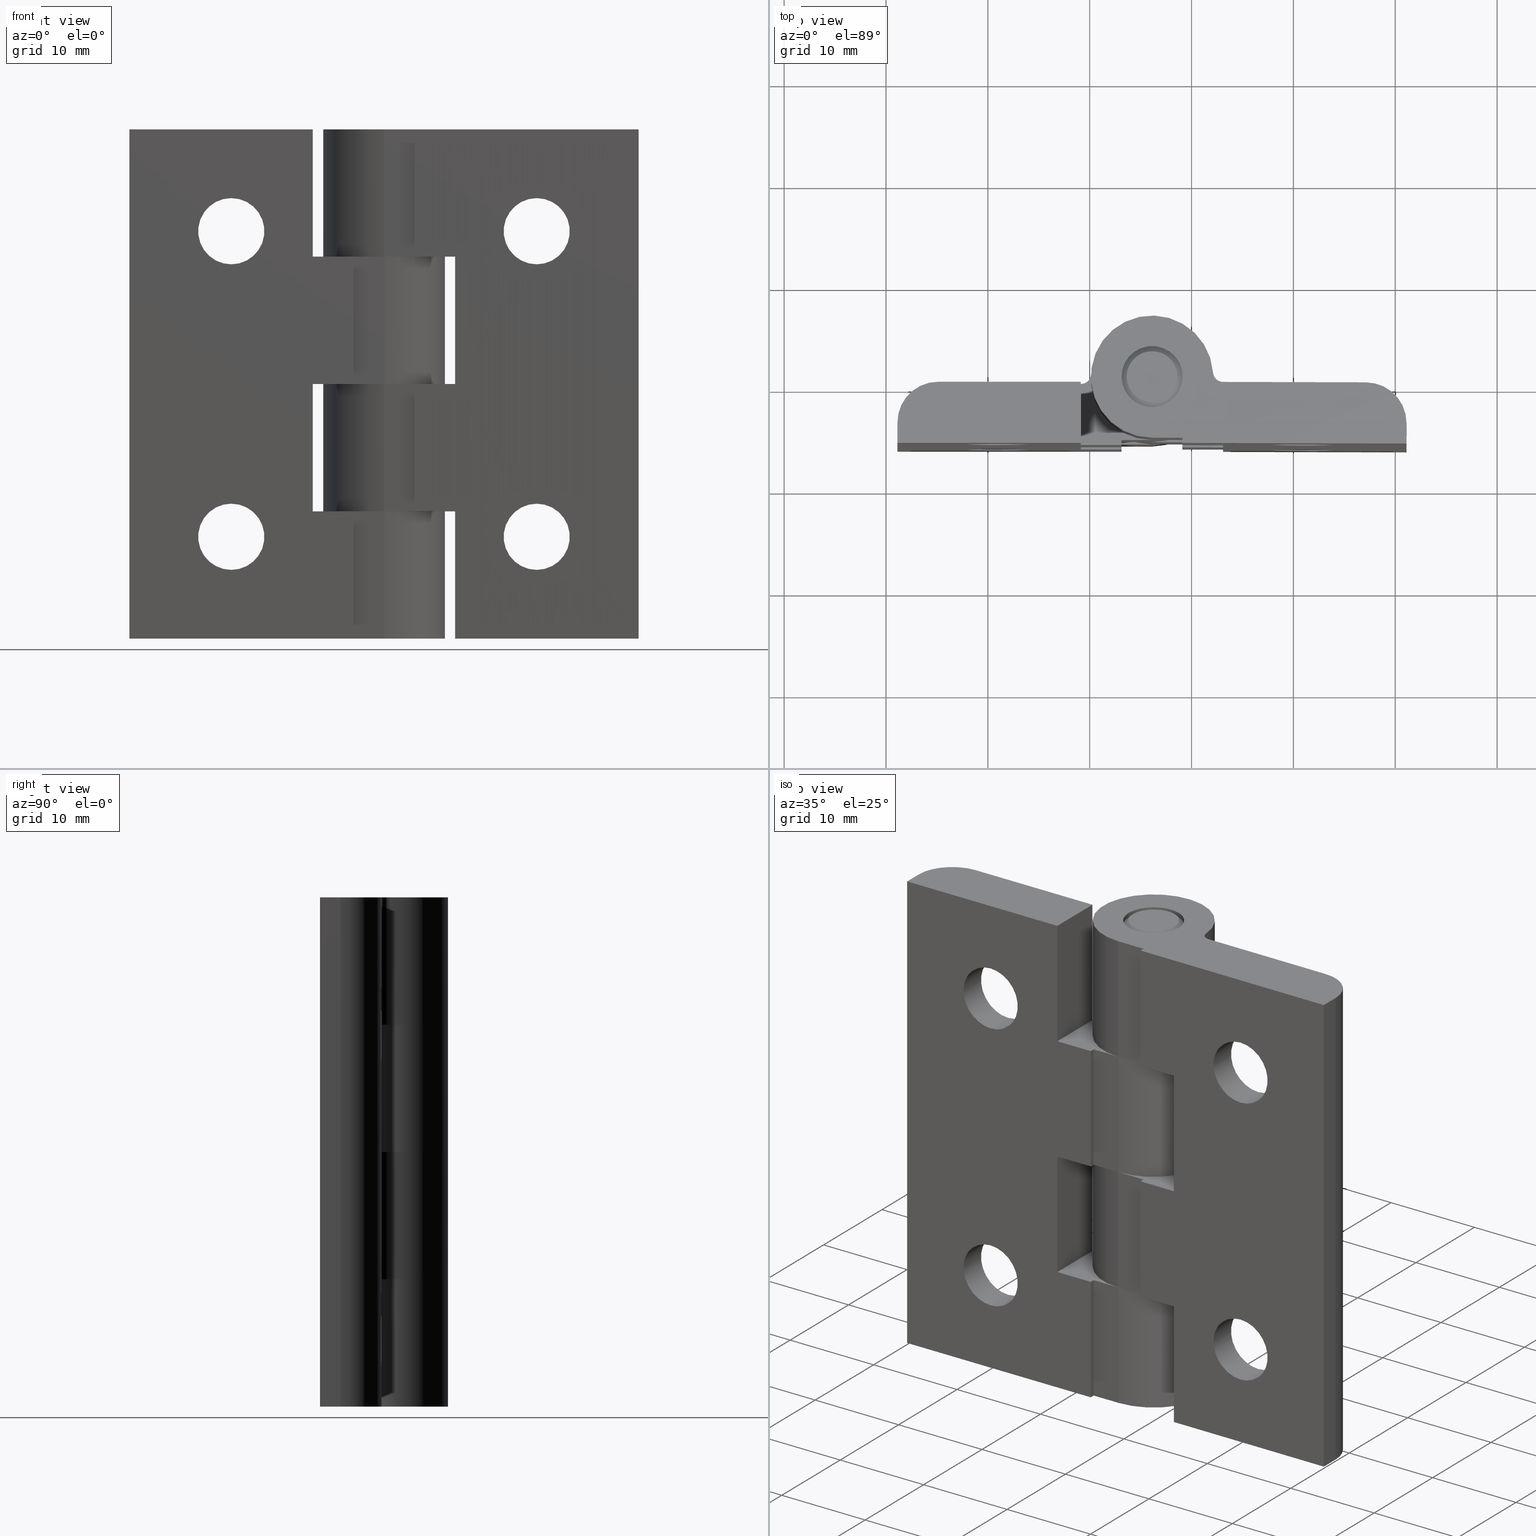
[diagram: canonical four-view strip — front | top / right | iso, engineering-drawing reading convention]
A machine part, canonical four-view strip (front | top / right | iso — engineering-drawing reading convention). The complete STEP part file that produces these views, byte-faithful:
ISO-10303-21;
HEADER;
/* Generated by software containing ST-Developer
 * from STEP Tools, Inc. (www.steptools.com) 
 */

FILE_DESCRIPTION(
/* description */ (''),
/* implementation_level */ '2;1');

FILE_NAME(
/* name */ 
'Q:\\Catalogo\\2_Accessori Dierre\\Per Download Web e catalogo cartace
o\\CATALOGO ACCESSORI PER RIPARI\\PAGINA 59\\CCRYY0000063.stp',
/* time_stamp */ '2018-07-30T11:57:27+02:00',
/* author */ ('fzagni'),
/* organization */ (''),
/* preprocessor_version */ 'ST-DEVELOPER v16.1',
/* originating_system */ 'Autodesk Inventor 2016',
/* authorisation */ '');

FILE_SCHEMA (('AUTOMOTIVE_DESIGN { 1 0 10303 214 3 1 1 }'));
ENDSEC;

DATA;
#10=MECHANICAL_DESIGN_GEOMETRIC_PRESENTATION_REPRESENTATION('',(#30,#31),
#990);
#11=ITEM_DEFINED_TRANSFORMATION($,$,#577,#638);
#12=ITEM_DEFINED_TRANSFORMATION($,$,#577,#639);
#13=ITEM_DEFINED_TRANSFORMATION($,$,#627,#640);
#14=(
REPRESENTATION_RELATIONSHIP($,$,#1003,#1005)
REPRESENTATION_RELATIONSHIP_WITH_TRANSFORMATION(#11)
SHAPE_REPRESENTATION_RELATIONSHIP()
);
#15=(
REPRESENTATION_RELATIONSHIP($,$,#1003,#1005)
REPRESENTATION_RELATIONSHIP_WITH_TRANSFORMATION(#12)
SHAPE_REPRESENTATION_RELATIONSHIP()
);
#16=(
REPRESENTATION_RELATIONSHIP($,$,#1004,#1005)
REPRESENTATION_RELATIONSHIP_WITH_TRANSFORMATION(#13)
SHAPE_REPRESENTATION_RELATIONSHIP()
);
#17=CONTEXT_DEPENDENT_SHAPE_REPRESENTATION(#14,#1000);
#18=CONTEXT_DEPENDENT_SHAPE_REPRESENTATION(#15,#1001);
#19=CONTEXT_DEPENDENT_SHAPE_REPRESENTATION(#16,#1002);
#20=NEXT_ASSEMBLY_USAGE_OCCURRENCE('440000005448.ipt:1',
'440000005448.ipt:1','440000005448.ipt:1',#1009,#1007,
'440000005448.ipt:1');
#21=NEXT_ASSEMBLY_USAGE_OCCURRENCE('440000005448.ipt:2',
'440000005448.ipt:2','440000005448.ipt:2',#1009,#1007,
'440000005448.ipt:2');
#22=NEXT_ASSEMBLY_USAGE_OCCURRENCE('440000005447.ipt:3',
'440000005447.ipt:3','440000005447.ipt:3',#1009,#1008,
'440000005447.ipt:3');
#23=DIMENSIONAL_EXPONENTS(0.,0.,0.,0.,0.,0.,0.);
#24=(
CONVERSION_BASED_UNIT('degree',#25)
NAMED_UNIT(#23)
PLANE_ANGLE_UNIT()
);
#25=PLANE_ANGLE_MEASURE_WITH_UNIT(PLANE_ANGLE_MEASURE(0.01745329252),#993);
#26=SHAPE_REPRESENTATION_RELATIONSHIP('SRR','None',#1003,#28);
#27=SHAPE_REPRESENTATION_RELATIONSHIP('SRR','None',#1004,#29);
#28=ADVANCED_BREP_SHAPE_REPRESENTATION('',(#32),#987);
#29=ADVANCED_BREP_SHAPE_REPRESENTATION('',(#33),#988);
#30=STYLED_ITEM('',(#1022),#32);
#31=STYLED_ITEM('',(#1023),#33);
#32=MANIFOLD_SOLID_BREP('Solido1',#575);
#33=MANIFOLD_SOLID_BREP('Solido1',#576);
#34=LINE('',#846,#77);
#35=LINE('',#848,#78);
#36=LINE('',#850,#79);
#37=LINE('',#852,#80);
#38=LINE('',#854,#81);
#39=LINE('',#856,#82);
#40=LINE('',#858,#83);
#41=LINE('',#860,#84);
#42=LINE('',#862,#85);
#43=LINE('',#863,#86);
#44=LINE('',#869,#87);
#45=LINE('',#871,#88);
#46=LINE('',#873,#89);
#47=LINE('',#875,#90);
#48=LINE('',#877,#91);
#49=LINE('',#879,#92);
#50=LINE('',#881,#93);
#51=LINE('',#883,#94);
#52=LINE('',#884,#95);
#53=LINE('',#885,#96);
#54=LINE('',#887,#97);
#55=LINE('',#888,#98);
#56=LINE('',#891,#99);
#57=LINE('',#893,#100);
#58=LINE('',#894,#101);
#59=LINE('',#897,#102);
#60=LINE('',#903,#103);
#61=LINE('',#911,#104);
#62=LINE('',#918,#105);
#63=LINE('',#921,#106);
#64=LINE('',#922,#107);
#65=LINE('',#926,#108);
#66=LINE('',#928,#109);
#67=LINE('',#930,#110);
#68=LINE('',#940,#111);
#69=LINE('',#941,#112);
#70=LINE('',#942,#113);
#71=LINE('',#947,#114);
#72=LINE('',#949,#115);
#73=LINE('',#951,#116);
#74=LINE('',#953,#117);
#75=LINE('',#955,#118);
#76=LINE('',#958,#119);
#77=VECTOR('',#665,12.5);
#78=VECTOR('',#666,18.);
#79=VECTOR('',#667,50.);
#80=VECTOR('',#668,22.);
#81=VECTOR('',#669,12.5);
#82=VECTOR('',#670,4.);
#83=VECTOR('',#671,12.5);
#84=VECTOR('',#672,4.);
#85=VECTOR('',#673,12.5);
#86=VECTOR('',#674,4.);
#87=VECTOR('',#679,12.5);
#88=VECTOR('',#680,0.0178799781155306);
#89=VECTOR('',#681,12.5);
#90=VECTOR('',#682,0.0178799781155306);
#91=VECTOR('',#683,12.5);
#92=VECTOR('',#684,0.0178799781155306);
#93=VECTOR('',#685,12.5);
#94=VECTOR('',#686,14.0178799781155);
#95=VECTOR('',#687,8.25000000000001);
#96=VECTOR('',#688,26.5);
#97=VECTOR('',#689,8.25);
#98=VECTOR('',#690,14.);
#99=VECTOR('',#693,2.);
#100=VECTOR('',#694,2.);
#101=VECTOR('',#695,50.);
#102=VECTOR('',#698,0.5);
#103=VECTOR('',#705,3.);
#104=VECTOR('',#716,12.5);
#105=VECTOR('',#725,12.5);
#106=VECTOR('',#728,12.5);
#107=VECTOR('',#729,3.);
#108=VECTOR('',#734,6.);
#109=VECTOR('',#735,0.5);
#110=VECTOR('',#736,3.);
#111=VECTOR('',#747,3.);
#112=VECTOR('',#748,0.5);
#113=VECTOR('',#749,6.);
#114=VECTOR('',#756,12.5);
#115=VECTOR('',#759,12.5);
#116=VECTOR('',#762,12.5);
#117=VECTOR('',#765,6.);
#118=VECTOR('',#768,0.5);
#119=VECTOR('',#773,6.);
#120=PLANE('',#588);
#121=PLANE('',#590);
#122=PLANE('',#591);
#123=PLANE('',#592);
#124=PLANE('',#605);
#125=PLANE('',#606);
#126=PLANE('',#610);
#127=PLANE('',#617);
#128=PLANE('',#618);
#129=PLANE('',#619);
#130=PLANE('',#620);
#131=PLANE('',#621);
#132=PLANE('',#625);
#133=PLANE('',#626);
#134=PLANE('',#635);
#135=PLANE('',#636);
#136=CONICAL_SURFACE('',#584,6.25,0.982793723247329);
#137=CONICAL_SURFACE('',#622,6.25,0.982793723247329);
#138=CONICAL_SURFACE('',#628,3.,0.785398163397448);
#139=CONICAL_SURFACE('',#633,2.5,0.785398163397448);
#140=FACE_BOUND('',#192,.T.);
#141=FACE_BOUND('',#194,.T.);
#142=FACE_BOUND('',#196,.T.);
#143=FACE_BOUND('',#198,.T.);
#144=FACE_BOUND('',#200,.T.);
#145=FACE_BOUND('',#201,.T.);
#146=FACE_BOUND('',#205,.T.);
#147=FACE_BOUND('',#209,.T.);
#148=FACE_BOUND('',#213,.T.);
#149=FACE_BOUND('',#215,.T.);
#150=FACE_BOUND('',#217,.T.);
#151=FACE_BOUND('',#225,.T.);
#152=FACE_BOUND('',#227,.T.);
#153=FACE_BOUND('',#229,.T.);
#154=FACE_BOUND('',#233,.T.);
#155=FACE_BOUND('',#235,.T.);
#156=FACE_BOUND('',#237,.T.);
#157=B_SPLINE_CURVE_WITH_KNOTS('',3,(#818,#819,#820,#821,#822,#823),
 .UNSPECIFIED.,.F.,.F.,(4,2,4),(0.787149185360134,0.957185667053921,1.12722214874771),
 .UNSPECIFIED.);
#158=B_SPLINE_CURVE_WITH_KNOTS('',3,(#836,#837,#838,#839,#840,#841),
 .UNSPECIFIED.,.F.,.F.,(4,2,4),(0.787149185360135,0.957185667053921,1.12722214874771),
 .UNSPECIFIED.);
#159=FACE_OUTER_BOUND('',#191,.T.);
#160=FACE_OUTER_BOUND('',#193,.T.);
#161=FACE_OUTER_BOUND('',#195,.T.);
#162=FACE_OUTER_BOUND('',#197,.T.);
#163=FACE_OUTER_BOUND('',#199,.T.);
#164=FACE_OUTER_BOUND('',#202,.T.);
#165=FACE_OUTER_BOUND('',#203,.T.);
#166=FACE_OUTER_BOUND('',#204,.T.);
#167=FACE_OUTER_BOUND('',#206,.T.);
#168=FACE_OUTER_BOUND('',#207,.T.);
#169=FACE_OUTER_BOUND('',#208,.T.);
#170=FACE_OUTER_BOUND('',#210,.T.);
#171=FACE_OUTER_BOUND('',#211,.T.);
#172=FACE_OUTER_BOUND('',#212,.T.);
#173=FACE_OUTER_BOUND('',#214,.T.);
#174=FACE_OUTER_BOUND('',#216,.T.);
#175=FACE_OUTER_BOUND('',#218,.T.);
#176=FACE_OUTER_BOUND('',#219,.T.);
#177=FACE_OUTER_BOUND('',#220,.T.);
#178=FACE_OUTER_BOUND('',#221,.T.);
#179=FACE_OUTER_BOUND('',#222,.T.);
#180=FACE_OUTER_BOUND('',#223,.T.);
#181=FACE_OUTER_BOUND('',#224,.T.);
#182=FACE_OUTER_BOUND('',#226,.T.);
#183=FACE_OUTER_BOUND('',#228,.T.);
#184=FACE_OUTER_BOUND('',#230,.T.);
#185=FACE_OUTER_BOUND('',#231,.T.);
#186=FACE_OUTER_BOUND('',#232,.T.);
#187=FACE_OUTER_BOUND('',#234,.T.);
#188=FACE_OUTER_BOUND('',#236,.T.);
#189=FACE_OUTER_BOUND('',#238,.T.);
#190=FACE_OUTER_BOUND('',#239,.T.);
#191=EDGE_LOOP('',(#389));
#192=EDGE_LOOP('',(#390,#391));
#193=EDGE_LOOP('',(#392));
#194=EDGE_LOOP('',(#393));
#195=EDGE_LOOP('',(#394));
#196=EDGE_LOOP('',(#395));
#197=EDGE_LOOP('',(#396));
#198=EDGE_LOOP('',(#397,#398));
#199=EDGE_LOOP('',(#399,#400,#401,#402,#403,#404,#405,#406,#407,#408));
#200=EDGE_LOOP('',(#409));
#201=EDGE_LOOP('',(#410));
#202=EDGE_LOOP('',(#411,#412,#413,#414,#415,#416,#417,#418,#419,#420,#421,
#422,#423,#424));
#203=EDGE_LOOP('',(#425,#426,#427,#428));
#204=EDGE_LOOP('',(#429,#430,#431,#432,#433,#434,#435,#436));
#205=EDGE_LOOP('',(#437));
#206=EDGE_LOOP('',(#438,#439,#440,#441,#442,#443,#444,#445));
#207=EDGE_LOOP('',(#446,#447,#448,#449));
#208=EDGE_LOOP('',(#450));
#209=EDGE_LOOP('',(#451));
#210=EDGE_LOOP('',(#452,#453,#454,#455));
#211=EDGE_LOOP('',(#456,#457,#458,#459));
#212=EDGE_LOOP('',(#460,#461,#462,#463,#464,#465,#466));
#213=EDGE_LOOP('',(#467));
#214=EDGE_LOOP('',(#468,#469,#470,#471,#472,#473,#474));
#215=EDGE_LOOP('',(#475));
#216=EDGE_LOOP('',(#476));
#217=EDGE_LOOP('',(#477));
#218=EDGE_LOOP('',(#478,#479,#480,#481));
#219=EDGE_LOOP('',(#482,#483,#484,#485));
#220=EDGE_LOOP('',(#486,#487,#488,#489));
#221=EDGE_LOOP('',(#490,#491,#492,#493,#494));
#222=EDGE_LOOP('',(#495,#496,#497,#498));
#223=EDGE_LOOP('',(#499,#500,#501,#502));
#224=EDGE_LOOP('',(#503,#504,#505,#506,#507,#508,#509));
#225=EDGE_LOOP('',(#510));
#226=EDGE_LOOP('',(#511));
#227=EDGE_LOOP('',(#512));
#228=EDGE_LOOP('',(#513));
#229=EDGE_LOOP('',(#514));
#230=EDGE_LOOP('',(#515,#516,#517,#518));
#231=EDGE_LOOP('',(#519,#520,#521,#522));
#232=EDGE_LOOP('',(#523));
#233=EDGE_LOOP('',(#524));
#234=EDGE_LOOP('',(#525));
#235=EDGE_LOOP('',(#526));
#236=EDGE_LOOP('',(#527));
#237=EDGE_LOOP('',(#528));
#238=EDGE_LOOP('',(#529));
#239=EDGE_LOOP('',(#530));
#240=CIRCLE('',#579,6.25);
#241=CIRCLE('',#580,6.25);
#242=CIRCLE('',#582,3.25);
#243=CIRCLE('',#583,3.25);
#244=CIRCLE('',#585,6.25);
#245=CIRCLE('',#587,6.25);
#246=CIRCLE('',#589,3.25);
#247=CIRCLE('',#593,4.);
#248=CIRCLE('',#594,1.);
#249=CIRCLE('',#595,6.);
#250=CIRCLE('',#596,3.);
#251=CIRCLE('',#598,4.);
#252=CIRCLE('',#600,1.);
#253=CIRCLE('',#602,3.);
#254=CIRCLE('',#604,6.);
#255=CIRCLE('',#607,1.);
#256=CIRCLE('',#608,6.);
#257=CIRCLE('',#609,3.);
#258=CIRCLE('',#611,1.);
#259=CIRCLE('',#612,6.);
#260=CIRCLE('',#613,3.);
#261=CIRCLE('',#623,3.25);
#262=CIRCLE('',#629,2.5);
#263=CIRCLE('',#630,3.);
#264=CIRCLE('',#632,3.);
#265=CIRCLE('',#634,2.5);
#266=VERTEX_POINT('',#814);
#267=VERTEX_POINT('',#816);
#268=VERTEX_POINT('',#817);
#269=VERTEX_POINT('',#826);
#270=VERTEX_POINT('',#828);
#271=VERTEX_POINT('',#831);
#272=VERTEX_POINT('',#834);
#273=VERTEX_POINT('',#835);
#274=VERTEX_POINT('',#844);
#275=VERTEX_POINT('',#845);
#276=VERTEX_POINT('',#847);
#277=VERTEX_POINT('',#849);
#278=VERTEX_POINT('',#851);
#279=VERTEX_POINT('',#853);
#280=VERTEX_POINT('',#855);
#281=VERTEX_POINT('',#857);
#282=VERTEX_POINT('',#859);
#283=VERTEX_POINT('',#861);
#284=VERTEX_POINT('',#864);
#285=VERTEX_POINT('',#867);
#286=VERTEX_POINT('',#868);
#287=VERTEX_POINT('',#870);
#288=VERTEX_POINT('',#872);
#289=VERTEX_POINT('',#874);
#290=VERTEX_POINT('',#876);
#291=VERTEX_POINT('',#878);
#292=VERTEX_POINT('',#880);
#293=VERTEX_POINT('',#882);
#294=VERTEX_POINT('',#886);
#295=VERTEX_POINT('',#890);
#296=VERTEX_POINT('',#892);
#297=VERTEX_POINT('',#896);
#298=VERTEX_POINT('',#899);
#299=VERTEX_POINT('',#901);
#300=VERTEX_POINT('',#904);
#301=VERTEX_POINT('',#909);
#302=VERTEX_POINT('',#913);
#303=VERTEX_POINT('',#916);
#304=VERTEX_POINT('',#920);
#305=VERTEX_POINT('',#924);
#306=VERTEX_POINT('',#927);
#307=VERTEX_POINT('',#929);
#308=VERTEX_POINT('',#932);
#309=VERTEX_POINT('',#935);
#310=VERTEX_POINT('',#937);
#311=VERTEX_POINT('',#939);
#312=VERTEX_POINT('',#943);
#313=VERTEX_POINT('',#960);
#314=VERTEX_POINT('',#967);
#315=VERTEX_POINT('',#969);
#316=VERTEX_POINT('',#972);
#317=VERTEX_POINT('',#975);
#318=EDGE_CURVE('',#266,#266,#240,.T.);
#319=EDGE_CURVE('',#267,#268,#157,.F.);
#320=EDGE_CURVE('',#267,#268,#241,.F.);
#321=EDGE_CURVE('',#269,#269,#242,.T.);
#322=EDGE_CURVE('',#270,#270,#243,.T.);
#323=EDGE_CURVE('',#271,#271,#244,.T.);
#324=EDGE_CURVE('',#272,#273,#158,.F.);
#325=EDGE_CURVE('',#272,#273,#245,.F.);
#326=EDGE_CURVE('',#274,#275,#34,.T.);
#327=EDGE_CURVE('',#276,#274,#35,.T.);
#328=EDGE_CURVE('',#276,#277,#36,.T.);
#329=EDGE_CURVE('',#277,#278,#37,.T.);
#330=EDGE_CURVE('',#279,#278,#38,.T.);
#331=EDGE_CURVE('',#280,#279,#39,.T.);
#332=EDGE_CURVE('',#280,#281,#40,.T.);
#333=EDGE_CURVE('',#281,#282,#41,.T.);
#334=EDGE_CURVE('',#283,#282,#42,.T.);
#335=EDGE_CURVE('',#275,#283,#43,.T.);
#336=EDGE_CURVE('',#284,#284,#246,.T.);
#337=EDGE_CURVE('',#285,#286,#44,.T.);
#338=EDGE_CURVE('',#287,#285,#45,.T.);
#339=EDGE_CURVE('',#287,#288,#46,.T.);
#340=EDGE_CURVE('',#288,#289,#47,.T.);
#341=EDGE_CURVE('',#289,#290,#48,.T.);
#342=EDGE_CURVE('',#291,#290,#49,.T.);
#343=EDGE_CURVE('',#292,#291,#50,.T.);
#344=EDGE_CURVE('',#292,#293,#51,.T.);
#345=EDGE_CURVE('',#268,#293,#52,.T.);
#346=EDGE_CURVE('',#273,#267,#53,.T.);
#347=EDGE_CURVE('',#294,#272,#54,.T.);
#348=EDGE_CURVE('',#286,#294,#55,.T.);
#349=EDGE_CURVE('',#295,#277,#56,.T.);
#350=EDGE_CURVE('',#296,#276,#57,.T.);
#351=EDGE_CURVE('',#296,#295,#58,.T.);
#352=EDGE_CURVE('',#278,#297,#59,.T.);
#353=EDGE_CURVE('',#293,#295,#247,.T.);
#354=EDGE_CURVE('',#292,#298,#248,.T.);
#355=EDGE_CURVE('',#299,#298,#249,.T.);
#356=EDGE_CURVE('',#297,#299,#60,.T.);
#357=EDGE_CURVE('',#300,#300,#250,.T.);
#358=EDGE_CURVE('',#294,#296,#251,.T.);
#359=EDGE_CURVE('',#291,#301,#252,.T.);
#360=EDGE_CURVE('',#298,#301,#61,.T.);
#361=EDGE_CURVE('',#302,#302,#253,.T.);
#362=EDGE_CURVE('',#303,#301,#254,.T.);
#363=EDGE_CURVE('',#299,#303,#62,.T.);
#364=EDGE_CURVE('',#297,#304,#63,.T.);
#365=EDGE_CURVE('',#304,#303,#64,.T.);
#366=EDGE_CURVE('',#287,#305,#255,.T.);
#367=EDGE_CURVE('',#285,#275,#65,.T.);
#368=EDGE_CURVE('',#283,#306,#66,.T.);
#369=EDGE_CURVE('',#306,#307,#67,.T.);
#370=EDGE_CURVE('',#307,#305,#256,.T.);
#371=EDGE_CURVE('',#308,#308,#257,.T.);
#372=EDGE_CURVE('',#288,#309,#258,.T.);
#373=EDGE_CURVE('',#310,#309,#259,.T.);
#374=EDGE_CURVE('',#311,#310,#68,.T.);
#375=EDGE_CURVE('',#282,#311,#69,.T.);
#376=EDGE_CURVE('',#289,#281,#70,.T.);
#377=EDGE_CURVE('',#312,#312,#260,.T.);
#378=EDGE_CURVE('',#305,#309,#71,.T.);
#379=EDGE_CURVE('',#307,#310,#72,.T.);
#380=EDGE_CURVE('',#306,#311,#73,.T.);
#381=EDGE_CURVE('',#274,#286,#74,.T.);
#382=EDGE_CURVE('',#279,#304,#75,.T.);
#383=EDGE_CURVE('',#290,#280,#76,.T.);
#384=EDGE_CURVE('',#313,#313,#261,.T.);
#385=EDGE_CURVE('',#314,#314,#262,.T.);
#386=EDGE_CURVE('',#315,#315,#263,.T.);
#387=EDGE_CURVE('',#316,#316,#264,.T.);
#388=EDGE_CURVE('',#317,#317,#265,.T.);
#389=ORIENTED_EDGE('',*,*,#318,.T.);
#390=ORIENTED_EDGE('',*,*,#319,.F.);
#391=ORIENTED_EDGE('',*,*,#320,.T.);
#392=ORIENTED_EDGE('',*,*,#321,.T.);
#393=ORIENTED_EDGE('',*,*,#322,.F.);
#394=ORIENTED_EDGE('',*,*,#322,.T.);
#395=ORIENTED_EDGE('',*,*,#323,.F.);
#396=ORIENTED_EDGE('',*,*,#323,.T.);
#397=ORIENTED_EDGE('',*,*,#324,.F.);
#398=ORIENTED_EDGE('',*,*,#325,.T.);
#399=ORIENTED_EDGE('',*,*,#326,.F.);
#400=ORIENTED_EDGE('',*,*,#327,.F.);
#401=ORIENTED_EDGE('',*,*,#328,.T.);
#402=ORIENTED_EDGE('',*,*,#329,.T.);
#403=ORIENTED_EDGE('',*,*,#330,.F.);
#404=ORIENTED_EDGE('',*,*,#331,.F.);
#405=ORIENTED_EDGE('',*,*,#332,.T.);
#406=ORIENTED_EDGE('',*,*,#333,.T.);
#407=ORIENTED_EDGE('',*,*,#334,.F.);
#408=ORIENTED_EDGE('',*,*,#335,.F.);
#409=ORIENTED_EDGE('',*,*,#336,.F.);
#410=ORIENTED_EDGE('',*,*,#321,.F.);
#411=ORIENTED_EDGE('',*,*,#337,.F.);
#412=ORIENTED_EDGE('',*,*,#338,.F.);
#413=ORIENTED_EDGE('',*,*,#339,.T.);
#414=ORIENTED_EDGE('',*,*,#340,.T.);
#415=ORIENTED_EDGE('',*,*,#341,.T.);
#416=ORIENTED_EDGE('',*,*,#342,.F.);
#417=ORIENTED_EDGE('',*,*,#343,.F.);
#418=ORIENTED_EDGE('',*,*,#344,.T.);
#419=ORIENTED_EDGE('',*,*,#345,.F.);
#420=ORIENTED_EDGE('',*,*,#320,.F.);
#421=ORIENTED_EDGE('',*,*,#346,.F.);
#422=ORIENTED_EDGE('',*,*,#325,.F.);
#423=ORIENTED_EDGE('',*,*,#347,.F.);
#424=ORIENTED_EDGE('',*,*,#348,.F.);
#425=ORIENTED_EDGE('',*,*,#349,.T.);
#426=ORIENTED_EDGE('',*,*,#328,.F.);
#427=ORIENTED_EDGE('',*,*,#350,.F.);
#428=ORIENTED_EDGE('',*,*,#351,.T.);
#429=ORIENTED_EDGE('',*,*,#352,.F.);
#430=ORIENTED_EDGE('',*,*,#329,.F.);
#431=ORIENTED_EDGE('',*,*,#349,.F.);
#432=ORIENTED_EDGE('',*,*,#353,.F.);
#433=ORIENTED_EDGE('',*,*,#344,.F.);
#434=ORIENTED_EDGE('',*,*,#354,.T.);
#435=ORIENTED_EDGE('',*,*,#355,.F.);
#436=ORIENTED_EDGE('',*,*,#356,.F.);
#437=ORIENTED_EDGE('',*,*,#357,.T.);
#438=ORIENTED_EDGE('',*,*,#319,.T.);
#439=ORIENTED_EDGE('',*,*,#345,.T.);
#440=ORIENTED_EDGE('',*,*,#353,.T.);
#441=ORIENTED_EDGE('',*,*,#351,.F.);
#442=ORIENTED_EDGE('',*,*,#358,.F.);
#443=ORIENTED_EDGE('',*,*,#347,.T.);
#444=ORIENTED_EDGE('',*,*,#324,.T.);
#445=ORIENTED_EDGE('',*,*,#346,.T.);
#446=ORIENTED_EDGE('',*,*,#359,.T.);
#447=ORIENTED_EDGE('',*,*,#360,.F.);
#448=ORIENTED_EDGE('',*,*,#354,.F.);
#449=ORIENTED_EDGE('',*,*,#343,.T.);
#450=ORIENTED_EDGE('',*,*,#357,.F.);
#451=ORIENTED_EDGE('',*,*,#361,.T.);
#452=ORIENTED_EDGE('',*,*,#362,.F.);
#453=ORIENTED_EDGE('',*,*,#363,.F.);
#454=ORIENTED_EDGE('',*,*,#355,.T.);
#455=ORIENTED_EDGE('',*,*,#360,.T.);
#456=ORIENTED_EDGE('',*,*,#364,.F.);
#457=ORIENTED_EDGE('',*,*,#356,.T.);
#458=ORIENTED_EDGE('',*,*,#363,.T.);
#459=ORIENTED_EDGE('',*,*,#365,.F.);
#460=ORIENTED_EDGE('',*,*,#366,.F.);
#461=ORIENTED_EDGE('',*,*,#338,.T.);
#462=ORIENTED_EDGE('',*,*,#367,.T.);
#463=ORIENTED_EDGE('',*,*,#335,.T.);
#464=ORIENTED_EDGE('',*,*,#368,.T.);
#465=ORIENTED_EDGE('',*,*,#369,.T.);
#466=ORIENTED_EDGE('',*,*,#370,.T.);
#467=ORIENTED_EDGE('',*,*,#371,.F.);
#468=ORIENTED_EDGE('',*,*,#372,.T.);
#469=ORIENTED_EDGE('',*,*,#373,.F.);
#470=ORIENTED_EDGE('',*,*,#374,.F.);
#471=ORIENTED_EDGE('',*,*,#375,.F.);
#472=ORIENTED_EDGE('',*,*,#333,.F.);
#473=ORIENTED_EDGE('',*,*,#376,.F.);
#474=ORIENTED_EDGE('',*,*,#340,.F.);
#475=ORIENTED_EDGE('',*,*,#377,.T.);
#476=ORIENTED_EDGE('',*,*,#371,.T.);
#477=ORIENTED_EDGE('',*,*,#377,.F.);
#478=ORIENTED_EDGE('',*,*,#372,.F.);
#479=ORIENTED_EDGE('',*,*,#339,.F.);
#480=ORIENTED_EDGE('',*,*,#366,.T.);
#481=ORIENTED_EDGE('',*,*,#378,.T.);
#482=ORIENTED_EDGE('',*,*,#373,.T.);
#483=ORIENTED_EDGE('',*,*,#378,.F.);
#484=ORIENTED_EDGE('',*,*,#370,.F.);
#485=ORIENTED_EDGE('',*,*,#379,.T.);
#486=ORIENTED_EDGE('',*,*,#369,.F.);
#487=ORIENTED_EDGE('',*,*,#380,.T.);
#488=ORIENTED_EDGE('',*,*,#374,.T.);
#489=ORIENTED_EDGE('',*,*,#379,.F.);
#490=ORIENTED_EDGE('',*,*,#327,.T.);
#491=ORIENTED_EDGE('',*,*,#381,.T.);
#492=ORIENTED_EDGE('',*,*,#348,.T.);
#493=ORIENTED_EDGE('',*,*,#358,.T.);
#494=ORIENTED_EDGE('',*,*,#350,.T.);
#495=ORIENTED_EDGE('',*,*,#382,.F.);
#496=ORIENTED_EDGE('',*,*,#330,.T.);
#497=ORIENTED_EDGE('',*,*,#352,.T.);
#498=ORIENTED_EDGE('',*,*,#364,.T.);
#499=ORIENTED_EDGE('',*,*,#368,.F.);
#500=ORIENTED_EDGE('',*,*,#334,.T.);
#501=ORIENTED_EDGE('',*,*,#375,.T.);
#502=ORIENTED_EDGE('',*,*,#380,.F.);
#503=ORIENTED_EDGE('',*,*,#362,.T.);
#504=ORIENTED_EDGE('',*,*,#359,.F.);
#505=ORIENTED_EDGE('',*,*,#342,.T.);
#506=ORIENTED_EDGE('',*,*,#383,.T.);
#507=ORIENTED_EDGE('',*,*,#331,.T.);
#508=ORIENTED_EDGE('',*,*,#382,.T.);
#509=ORIENTED_EDGE('',*,*,#365,.T.);
#510=ORIENTED_EDGE('',*,*,#361,.F.);
#511=ORIENTED_EDGE('',*,*,#384,.T.);
#512=ORIENTED_EDGE('',*,*,#318,.F.);
#513=ORIENTED_EDGE('',*,*,#336,.T.);
#514=ORIENTED_EDGE('',*,*,#384,.F.);
#515=ORIENTED_EDGE('',*,*,#376,.T.);
#516=ORIENTED_EDGE('',*,*,#332,.F.);
#517=ORIENTED_EDGE('',*,*,#383,.F.);
#518=ORIENTED_EDGE('',*,*,#341,.F.);
#519=ORIENTED_EDGE('',*,*,#337,.T.);
#520=ORIENTED_EDGE('',*,*,#381,.F.);
#521=ORIENTED_EDGE('',*,*,#326,.T.);
#522=ORIENTED_EDGE('',*,*,#367,.F.);
#523=ORIENTED_EDGE('',*,*,#385,.F.);
#524=ORIENTED_EDGE('',*,*,#386,.T.);
#525=ORIENTED_EDGE('',*,*,#386,.F.);
#526=ORIENTED_EDGE('',*,*,#387,.T.);
#527=ORIENTED_EDGE('',*,*,#387,.F.);
#528=ORIENTED_EDGE('',*,*,#388,.T.);
#529=ORIENTED_EDGE('',*,*,#388,.F.);
#530=ORIENTED_EDGE('',*,*,#385,.T.);
#531=CYLINDRICAL_SURFACE('',#578,6.25);
#532=CYLINDRICAL_SURFACE('',#581,3.25);
#533=CYLINDRICAL_SURFACE('',#586,6.25);
#534=CYLINDRICAL_SURFACE('',#597,4.);
#535=CYLINDRICAL_SURFACE('',#599,1.);
#536=CYLINDRICAL_SURFACE('',#601,3.);
#537=CYLINDRICAL_SURFACE('',#603,6.);
#538=CYLINDRICAL_SURFACE('',#614,3.);
#539=CYLINDRICAL_SURFACE('',#615,1.);
#540=CYLINDRICAL_SURFACE('',#616,6.);
#541=CYLINDRICAL_SURFACE('',#624,3.25);
#542=CYLINDRICAL_SURFACE('',#631,3.);
#543=ADVANCED_FACE('',(#159,#140),#531,.F.);
#544=ADVANCED_FACE('',(#160,#141),#532,.F.);
#545=ADVANCED_FACE('',(#161,#142),#136,.F.);
#546=ADVANCED_FACE('',(#162,#143),#533,.F.);
#547=ADVANCED_FACE('',(#163,#144,#145),#120,.F.);
#548=ADVANCED_FACE('',(#164),#121,.F.);
#549=ADVANCED_FACE('',(#165),#122,.F.);
#550=ADVANCED_FACE('',(#166,#146),#123,.F.);
#551=ADVANCED_FACE('',(#167),#534,.T.);
#552=ADVANCED_FACE('',(#168),#535,.F.);
#553=ADVANCED_FACE('',(#169,#147),#536,.F.);
#554=ADVANCED_FACE('',(#170),#537,.T.);
#555=ADVANCED_FACE('',(#171),#124,.T.);
#556=ADVANCED_FACE('',(#172,#148),#125,.T.);
#557=ADVANCED_FACE('',(#173,#149),#126,.F.);
#558=ADVANCED_FACE('',(#174,#150),#538,.F.);
#559=ADVANCED_FACE('',(#175),#539,.F.);
#560=ADVANCED_FACE('',(#176),#540,.T.);
#561=ADVANCED_FACE('',(#177),#127,.F.);
#562=ADVANCED_FACE('',(#178),#128,.T.);
#563=ADVANCED_FACE('',(#179),#129,.F.);
#564=ADVANCED_FACE('',(#180),#130,.F.);
#565=ADVANCED_FACE('',(#181,#151),#131,.T.);
#566=ADVANCED_FACE('',(#182,#152),#137,.F.);
#567=ADVANCED_FACE('',(#183,#153),#541,.F.);
#568=ADVANCED_FACE('',(#184),#132,.F.);
#569=ADVANCED_FACE('',(#185),#133,.T.);
#570=ADVANCED_FACE('',(#186,#154),#138,.T.);
#571=ADVANCED_FACE('',(#187,#155),#542,.T.);
#572=ADVANCED_FACE('',(#188,#156),#139,.T.);
#573=ADVANCED_FACE('',(#189),#134,.F.);
#574=ADVANCED_FACE('',(#190),#135,.F.);
#575=CLOSED_SHELL('',(#543,#544,#545,#546,#547,#548,#549,#550,#551,#552,
#553,#554,#555,#556,#557,#558,#559,#560,#561,#562,#563,#564,#565,#566,#567,
#568,#569));
#576=CLOSED_SHELL('',(#570,#571,#572,#573,#574));
#577=AXIS2_PLACEMENT_3D('placement',#812,#641,#642);
#578=AXIS2_PLACEMENT_3D('',#813,#643,#644);
#579=AXIS2_PLACEMENT_3D('',#815,#645,#646);
#580=AXIS2_PLACEMENT_3D('',#824,#647,#648);
#581=AXIS2_PLACEMENT_3D('',#825,#649,#650);
#582=AXIS2_PLACEMENT_3D('',#827,#651,#652);
#583=AXIS2_PLACEMENT_3D('',#829,#653,#654);
#584=AXIS2_PLACEMENT_3D('',#830,#655,#656);
#585=AXIS2_PLACEMENT_3D('',#832,#657,#658);
#586=AXIS2_PLACEMENT_3D('',#833,#659,#660);
#587=AXIS2_PLACEMENT_3D('',#842,#661,#662);
#588=AXIS2_PLACEMENT_3D('',#843,#663,#664);
#589=AXIS2_PLACEMENT_3D('',#865,#675,#676);
#590=AXIS2_PLACEMENT_3D('',#866,#677,#678);
#591=AXIS2_PLACEMENT_3D('',#889,#691,#692);
#592=AXIS2_PLACEMENT_3D('',#895,#696,#697);
#593=AXIS2_PLACEMENT_3D('',#898,#699,#700);
#594=AXIS2_PLACEMENT_3D('',#900,#701,#702);
#595=AXIS2_PLACEMENT_3D('',#902,#703,#704);
#596=AXIS2_PLACEMENT_3D('',#905,#706,#707);
#597=AXIS2_PLACEMENT_3D('',#906,#708,#709);
#598=AXIS2_PLACEMENT_3D('',#907,#710,#711);
#599=AXIS2_PLACEMENT_3D('',#908,#712,#713);
#600=AXIS2_PLACEMENT_3D('',#910,#714,#715);
#601=AXIS2_PLACEMENT_3D('',#912,#717,#718);
#602=AXIS2_PLACEMENT_3D('',#914,#719,#720);
#603=AXIS2_PLACEMENT_3D('',#915,#721,#722);
#604=AXIS2_PLACEMENT_3D('',#917,#723,#724);
#605=AXIS2_PLACEMENT_3D('',#919,#726,#727);
#606=AXIS2_PLACEMENT_3D('',#923,#730,#731);
#607=AXIS2_PLACEMENT_3D('',#925,#732,#733);
#608=AXIS2_PLACEMENT_3D('',#931,#737,#738);
#609=AXIS2_PLACEMENT_3D('',#933,#739,#740);
#610=AXIS2_PLACEMENT_3D('',#934,#741,#742);
#611=AXIS2_PLACEMENT_3D('',#936,#743,#744);
#612=AXIS2_PLACEMENT_3D('',#938,#745,#746);
#613=AXIS2_PLACEMENT_3D('',#944,#750,#751);
#614=AXIS2_PLACEMENT_3D('',#945,#752,#753);
#615=AXIS2_PLACEMENT_3D('',#946,#754,#755);
#616=AXIS2_PLACEMENT_3D('',#948,#757,#758);
#617=AXIS2_PLACEMENT_3D('',#950,#760,#761);
#618=AXIS2_PLACEMENT_3D('',#952,#763,#764);
#619=AXIS2_PLACEMENT_3D('',#954,#766,#767);
#620=AXIS2_PLACEMENT_3D('',#956,#769,#770);
#621=AXIS2_PLACEMENT_3D('',#957,#771,#772);
#622=AXIS2_PLACEMENT_3D('',#959,#774,#775);
#623=AXIS2_PLACEMENT_3D('',#961,#776,#777);
#624=AXIS2_PLACEMENT_3D('',#962,#778,#779);
#625=AXIS2_PLACEMENT_3D('',#963,#780,#781);
#626=AXIS2_PLACEMENT_3D('',#964,#782,#783);
#627=AXIS2_PLACEMENT_3D('placement',#965,#784,#785);
#628=AXIS2_PLACEMENT_3D('',#966,#786,#787);
#629=AXIS2_PLACEMENT_3D('',#968,#788,#789);
#630=AXIS2_PLACEMENT_3D('',#970,#790,#791);
#631=AXIS2_PLACEMENT_3D('',#971,#792,#793);
#632=AXIS2_PLACEMENT_3D('',#973,#794,#795);
#633=AXIS2_PLACEMENT_3D('',#974,#796,#797);
#634=AXIS2_PLACEMENT_3D('',#976,#798,#799);
#635=AXIS2_PLACEMENT_3D('',#977,#800,#801);
#636=AXIS2_PLACEMENT_3D('',#978,#802,#803);
#637=AXIS2_PLACEMENT_3D('placement',#979,#804,#805);
#638=AXIS2_PLACEMENT_3D('',#980,#806,#807);
#639=AXIS2_PLACEMENT_3D('',#981,#808,#809);
#640=AXIS2_PLACEMENT_3D('',#982,#810,#811);
#641=DIRECTION('axis',(0.,0.,1.));
#642=DIRECTION('refdir',(1.,0.,0.));
#643=DIRECTION('center_axis',(0.,1.,0.));
#644=DIRECTION('ref_axis',(0.,0.,-1.));
#645=DIRECTION('center_axis',(0.,-1.,0.));
#646=DIRECTION('ref_axis',(0.,0.,-1.));
#647=DIRECTION('center_axis',(0.,-1.,0.));
#648=DIRECTION('ref_axis',(0.,0.,-1.));
#649=DIRECTION('center_axis',(0.,1.,0.));
#650=DIRECTION('ref_axis',(0.,0.,-1.));
#651=DIRECTION('center_axis',(0.,-1.,0.));
#652=DIRECTION('ref_axis',(0.,0.,-1.));
#653=DIRECTION('center_axis',(0.,-1.,0.));
#654=DIRECTION('ref_axis',(0.,0.,-1.));
#655=DIRECTION('center_axis',(0.,1.,0.));
#656=DIRECTION('ref_axis',(0.,0.,1.));
#657=DIRECTION('center_axis',(0.,-1.,0.));
#658=DIRECTION('ref_axis',(0.,0.,-1.));
#659=DIRECTION('center_axis',(0.,1.,0.));
#660=DIRECTION('ref_axis',(0.,0.,-1.));
#661=DIRECTION('center_axis',(0.,-1.,0.));
#662=DIRECTION('ref_axis',(0.,0.,-1.));
#663=DIRECTION('center_axis',(0.,1.,0.));
#664=DIRECTION('ref_axis',(0.,0.,1.));
#665=DIRECTION('',(0.,0.,-1.));
#666=DIRECTION('',(1.,0.,0.));
#667=DIRECTION('',(0.,0.,-1.));
#668=DIRECTION('',(1.,0.,0.));
#669=DIRECTION('',(0.,0.,-1.));
#670=DIRECTION('',(1.,0.,0.));
#671=DIRECTION('',(0.,0.,1.));
#672=DIRECTION('',(1.,0.,0.));
#673=DIRECTION('',(0.,0.,-1.));
#674=DIRECTION('',(1.,0.,0.));
#675=DIRECTION('center_axis',(0.,-1.,0.));
#676=DIRECTION('ref_axis',(0.,0.,-1.));
#677=DIRECTION('center_axis',(0.,-1.,0.));
#678=DIRECTION('ref_axis',(0.,0.,-1.));
#679=DIRECTION('',(0.,0.,1.));
#680=DIRECTION('',(-1.,0.,0.));
#681=DIRECTION('',(0.,0.,-1.));
#682=DIRECTION('',(-1.,0.,0.));
#683=DIRECTION('',(0.,0.,-1.));
#684=DIRECTION('',(-1.,0.,0.));
#685=DIRECTION('',(0.,0.,1.));
#686=DIRECTION('',(-1.,0.,0.));
#687=DIRECTION('',(0.,0.,-1.));
#688=DIRECTION('',(0.,0.,-1.));
#689=DIRECTION('',(0.,0.,-1.));
#690=DIRECTION('',(-1.,0.,0.));
#691=DIRECTION('center_axis',(1.,0.,0.));
#692=DIRECTION('ref_axis',(0.,0.,-1.));
#693=DIRECTION('',(0.,-1.,0.));
#694=DIRECTION('',(0.,-1.,0.));
#695=DIRECTION('',(0.,0.,-1.));
#696=DIRECTION('center_axis',(0.,0.,1.));
#697=DIRECTION('ref_axis',(1.,0.,0.));
#698=DIRECTION('',(0.,1.,0.));
#699=DIRECTION('center_axis',(0.,0.,1.));
#700=DIRECTION('ref_axis',(1.,0.,0.));
#701=DIRECTION('center_axis',(0.,0.,1.));
#702=DIRECTION('ref_axis',(1.,0.,0.));
#703=DIRECTION('center_axis',(0.,0.,1.));
#704=DIRECTION('ref_axis',(1.,0.,0.));
#705=DIRECTION('',(1.,0.,0.));
#706=DIRECTION('center_axis',(0.,0.,1.));
#707=DIRECTION('ref_axis',(1.,0.,0.));
#708=DIRECTION('center_axis',(0.,0.,1.));
#709=DIRECTION('ref_axis',(-1.,0.,0.));
#710=DIRECTION('center_axis',(0.,0.,1.));
#711=DIRECTION('ref_axis',(1.,0.,0.));
#712=DIRECTION('center_axis',(0.,0.,-1.));
#713=DIRECTION('ref_axis',(1.,0.,0.));
#714=DIRECTION('center_axis',(0.,0.,1.));
#715=DIRECTION('ref_axis',(1.,0.,0.));
#716=DIRECTION('',(0.,0.,1.));
#717=DIRECTION('center_axis',(0.,0.,-1.));
#718=DIRECTION('ref_axis',(1.,0.,0.));
#719=DIRECTION('center_axis',(0.,0.,1.));
#720=DIRECTION('ref_axis',(1.,0.,0.));
#721=DIRECTION('center_axis',(0.,0.,-1.));
#722=DIRECTION('ref_axis',(1.,0.,0.));
#723=DIRECTION('center_axis',(0.,0.,1.));
#724=DIRECTION('ref_axis',(1.,0.,0.));
#725=DIRECTION('',(0.,0.,1.));
#726=DIRECTION('center_axis',(0.,-1.,0.));
#727=DIRECTION('ref_axis',(0.,0.,-1.));
#728=DIRECTION('',(0.,0.,1.));
#729=DIRECTION('',(1.,0.,0.));
#730=DIRECTION('center_axis',(0.,0.,1.));
#731=DIRECTION('ref_axis',(1.,0.,0.));
#732=DIRECTION('center_axis',(0.,0.,1.));
#733=DIRECTION('ref_axis',(1.,0.,0.));
#734=DIRECTION('',(0.,-1.,0.));
#735=DIRECTION('',(0.,1.,0.));
#736=DIRECTION('',(1.,0.,0.));
#737=DIRECTION('center_axis',(0.,0.,1.));
#738=DIRECTION('ref_axis',(1.,0.,0.));
#739=DIRECTION('center_axis',(0.,0.,1.));
#740=DIRECTION('ref_axis',(1.,0.,0.));
#741=DIRECTION('center_axis',(0.,0.,1.));
#742=DIRECTION('ref_axis',(1.,0.,0.));
#743=DIRECTION('center_axis',(0.,0.,1.));
#744=DIRECTION('ref_axis',(1.,0.,0.));
#745=DIRECTION('center_axis',(0.,0.,1.));
#746=DIRECTION('ref_axis',(1.,0.,0.));
#747=DIRECTION('',(1.,0.,0.));
#748=DIRECTION('',(0.,1.,0.));
#749=DIRECTION('',(0.,-1.,0.));
#750=DIRECTION('center_axis',(0.,0.,1.));
#751=DIRECTION('ref_axis',(1.,0.,0.));
#752=DIRECTION('center_axis',(0.,0.,1.));
#753=DIRECTION('ref_axis',(-1.,0.,0.));
#754=DIRECTION('center_axis',(0.,0.,1.));
#755=DIRECTION('ref_axis',(-1.,0.,0.));
#756=DIRECTION('',(0.,0.,-1.));
#757=DIRECTION('center_axis',(0.,0.,1.));
#758=DIRECTION('ref_axis',(-1.,0.,0.));
#759=DIRECTION('',(0.,0.,-1.));
#760=DIRECTION('center_axis',(0.,1.,0.));
#761=DIRECTION('ref_axis',(0.,0.,1.));
#762=DIRECTION('',(0.,0.,-1.));
#763=DIRECTION('center_axis',(0.,0.,1.));
#764=DIRECTION('ref_axis',(1.,0.,0.));
#765=DIRECTION('',(0.,1.,0.));
#766=DIRECTION('center_axis',(-1.,0.,0.));
#767=DIRECTION('ref_axis',(0.,0.,1.));
#768=DIRECTION('',(0.,1.,0.));
#769=DIRECTION('center_axis',(-1.,0.,0.));
#770=DIRECTION('ref_axis',(0.,0.,1.));
#771=DIRECTION('center_axis',(0.,0.,1.));
#772=DIRECTION('ref_axis',(1.,0.,0.));
#773=DIRECTION('',(0.,-1.,0.));
#774=DIRECTION('center_axis',(0.,1.,0.));
#775=DIRECTION('ref_axis',(0.,0.,1.));
#776=DIRECTION('center_axis',(0.,-1.,0.));
#777=DIRECTION('ref_axis',(0.,0.,-1.));
#778=DIRECTION('center_axis',(0.,1.,0.));
#779=DIRECTION('ref_axis',(0.,0.,-1.));
#780=DIRECTION('center_axis',(-1.,0.,0.));
#781=DIRECTION('ref_axis',(0.,0.,1.));
#782=DIRECTION('center_axis',(1.,0.,0.));
#783=DIRECTION('ref_axis',(0.,0.,-1.));
#784=DIRECTION('axis',(0.,0.,1.));
#785=DIRECTION('refdir',(1.,0.,0.));
#786=DIRECTION('center_axis',(-1.,0.,0.));
#787=DIRECTION('ref_axis',(0.,0.,1.));
#788=DIRECTION('center_axis',(1.,0.,0.));
#789=DIRECTION('ref_axis',(0.,0.,-1.));
#790=DIRECTION('center_axis',(1.,0.,0.));
#791=DIRECTION('ref_axis',(0.,0.,-1.));
#792=DIRECTION('center_axis',(-1.,0.,0.));
#793=DIRECTION('ref_axis',(0.,0.,-1.));
#794=DIRECTION('center_axis',(1.,0.,0.));
#795=DIRECTION('ref_axis',(0.,0.,-1.));
#796=DIRECTION('center_axis',(1.,0.,0.));
#797=DIRECTION('ref_axis',(0.,0.,-1.));
#798=DIRECTION('center_axis',(1.,0.,0.));
#799=DIRECTION('ref_axis',(0.,0.,-1.));
#800=DIRECTION('center_axis',(1.,0.,0.));
#801=DIRECTION('ref_axis',(0.,0.,-1.));
#802=DIRECTION('center_axis',(-1.,0.,0.));
#803=DIRECTION('ref_axis',(0.,0.,1.));
#804=DIRECTION('axis',(0.,0.,1.));
#805=DIRECTION('refdir',(1.,0.,0.));
#806=DIRECTION('',(0.,0.,1.));
#807=DIRECTION('',(1.,0.,0.));
#808=DIRECTION('',(-5.6441910748023E-18,-5.08255566205262E-19,-1.));
#809=DIRECTION('',(-0.999995866776366,0.00287514002878423,5.64270644017511E-18));
#810=DIRECTION('',(-1.,-5.87393486351383E-34,-9.86408550010467E-52));
#811=DIRECTION('',(9.86408550010467E-52,-9.66118474494156E-85,-1.));
#812=CARTESIAN_POINT('',(0.,0.,0.));
#813=CARTESIAN_POINT('Origin',(-15.,0.,-15.));
#814=CARTESIAN_POINT('',(-15.,5.,-21.25));
#815=CARTESIAN_POINT('Origin',(-15.,5.,-15.));
#816=CARTESIAN_POINT('',(-21.,6.,-13.25));
#817=CARTESIAN_POINT('',(-21.,6.,-16.75));
#818=CARTESIAN_POINT('Ctrl Pts',(-21.,6.,-16.75));
#819=CARTESIAN_POINT('Ctrl Pts',(-21.1692973273697,6.,-16.1695520204466));
#820=CARTESIAN_POINT('Ctrl Pts',(-21.25,5.99217985566783,-15.5667882723126));
#821=CARTESIAN_POINT('Ctrl Pts',(-21.25,5.99217985566783,-14.4332117276874));
#822=CARTESIAN_POINT('Ctrl Pts',(-21.1692973273697,6.,-13.8304479795534));
#823=CARTESIAN_POINT('Ctrl Pts',(-21.,6.,-13.25));
#824=CARTESIAN_POINT('Origin',(-15.,6.,-15.));
#825=CARTESIAN_POINT('Origin',(-15.,0.,15.));
#826=CARTESIAN_POINT('',(-15.,0.,11.75));
#827=CARTESIAN_POINT('Origin',(-15.,0.,15.));
#828=CARTESIAN_POINT('',(-15.,3.,11.75));
#829=CARTESIAN_POINT('Origin',(-15.,3.,15.));
#830=CARTESIAN_POINT('Origin',(-15.,5.,15.));
#831=CARTESIAN_POINT('',(-15.,5.,8.75));
#832=CARTESIAN_POINT('Origin',(-15.,5.,15.));
#833=CARTESIAN_POINT('Origin',(-15.,0.,15.));
#834=CARTESIAN_POINT('',(-21.,6.,16.75));
#835=CARTESIAN_POINT('',(-21.,6.,13.25));
#836=CARTESIAN_POINT('Ctrl Pts',(-21.,6.,13.25));
#837=CARTESIAN_POINT('Ctrl Pts',(-21.1692973273697,6.,13.8304479795534));
#838=CARTESIAN_POINT('Ctrl Pts',(-21.25,5.99217985566783,14.4332117276874));
#839=CARTESIAN_POINT('Ctrl Pts',(-21.25,5.99217985566783,15.5667882723126));
#840=CARTESIAN_POINT('Ctrl Pts',(-21.1692973273697,6.,16.1695520204466));
#841=CARTESIAN_POINT('Ctrl Pts',(-21.,6.,16.75));
#842=CARTESIAN_POINT('Origin',(-15.,6.,15.));
#843=CARTESIAN_POINT('Origin',(-25.,0.,25.));
#844=CARTESIAN_POINT('',(-7.,0.,25.));
#845=CARTESIAN_POINT('',(-7.,0.,12.5));
#846=CARTESIAN_POINT('',(-7.,0.,25.));
#847=CARTESIAN_POINT('',(-25.,0.,25.));
#848=CARTESIAN_POINT('',(-25.,0.,25.));
#849=CARTESIAN_POINT('',(-25.,0.,-25.));
#850=CARTESIAN_POINT('',(-25.,0.,25.));
#851=CARTESIAN_POINT('',(-3.,0.,-25.));
#852=CARTESIAN_POINT('',(-25.,0.,-25.));
#853=CARTESIAN_POINT('',(-3.,0.,-12.5));
#854=CARTESIAN_POINT('',(-3.,0.,25.));
#855=CARTESIAN_POINT('',(-7.,0.,-12.5));
#856=CARTESIAN_POINT('',(-7.,0.,-12.5));
#857=CARTESIAN_POINT('',(-7.,0.,0.));
#858=CARTESIAN_POINT('',(-7.,0.,-12.5));
#859=CARTESIAN_POINT('',(-3.,0.,0.));
#860=CARTESIAN_POINT('',(-7.,0.,0.));
#861=CARTESIAN_POINT('',(-3.,0.,12.5));
#862=CARTESIAN_POINT('',(-3.,0.,25.));
#863=CARTESIAN_POINT('',(-7.,0.,12.5));
#864=CARTESIAN_POINT('',(-15.,0.,-18.25));
#865=CARTESIAN_POINT('Origin',(-15.,0.,-15.));
#866=CARTESIAN_POINT('Origin',(-3.,6.,25.));
#867=CARTESIAN_POINT('',(-7.,6.,12.5));
#868=CARTESIAN_POINT('',(-7.,6.,25.));
#869=CARTESIAN_POINT('',(-7.,6.,25.));
#870=CARTESIAN_POINT('',(-6.98212002188447,6.,12.5));
#871=CARTESIAN_POINT('',(-3.,6.,12.5));
#872=CARTESIAN_POINT('',(-6.98212002188447,6.,0.));
#873=CARTESIAN_POINT('',(-6.98212002188447,6.,12.5));
#874=CARTESIAN_POINT('',(-7.,6.,0.));
#875=CARTESIAN_POINT('',(-3.,6.,0.));
#876=CARTESIAN_POINT('',(-7.,6.,-12.5));
#877=CARTESIAN_POINT('',(-7.,6.,25.));
#878=CARTESIAN_POINT('',(-6.98212002188447,6.,-12.5));
#879=CARTESIAN_POINT('',(-3.,6.,-12.5));
#880=CARTESIAN_POINT('',(-6.98212002188447,6.,-25.));
#881=CARTESIAN_POINT('',(-6.98212002188447,6.,-25.));
#882=CARTESIAN_POINT('',(-21.,6.,-25.));
#883=CARTESIAN_POINT('',(-3.,6.,-25.));
#884=CARTESIAN_POINT('',(-21.,6.,25.));
#885=CARTESIAN_POINT('',(-21.,6.,25.));
#886=CARTESIAN_POINT('',(-21.,6.,25.));
#887=CARTESIAN_POINT('',(-21.,6.,25.));
#888=CARTESIAN_POINT('',(-3.,6.,25.));
#889=CARTESIAN_POINT('Origin',(-25.,2.,25.));
#890=CARTESIAN_POINT('',(-25.,2.,-25.));
#891=CARTESIAN_POINT('',(-25.,2.,-25.));
#892=CARTESIAN_POINT('',(-25.,2.,25.));
#893=CARTESIAN_POINT('',(-25.,2.,25.));
#894=CARTESIAN_POINT('',(-25.,2.,25.));
#895=CARTESIAN_POINT('Origin',(-21.,2.,-25.));
#896=CARTESIAN_POINT('',(-3.,0.5,-25.));
#897=CARTESIAN_POINT('',(-3.,0.,-25.));
#898=CARTESIAN_POINT('Origin',(-21.,2.,-25.));
#899=CARTESIAN_POINT('',(-5.9846743044724,6.92857142857142,-25.));
#900=CARTESIAN_POINT('Origin',(-6.98212002188447,7.,-25.));
#901=CARTESIAN_POINT('',(0.,0.5,-25.));
#902=CARTESIAN_POINT('Origin',(1.30104260698261E-15,6.5,-25.));
#903=CARTESIAN_POINT('',(-6.5,0.5,-25.));
#904=CARTESIAN_POINT('',(3.,6.5,-25.));
#905=CARTESIAN_POINT('Origin',(0.,6.5,-25.));
#906=CARTESIAN_POINT('Origin',(-21.,2.,25.));
#907=CARTESIAN_POINT('Origin',(-21.,2.,25.));
#908=CARTESIAN_POINT('Origin',(-6.98212002188447,7.,-25.));
#909=CARTESIAN_POINT('',(-5.9846743044724,6.92857142857142,-12.5));
#910=CARTESIAN_POINT('Origin',(-6.98212002188447,7.,-12.5));
#911=CARTESIAN_POINT('',(-5.9846743044724,6.92857142857142,-25.));
#912=CARTESIAN_POINT('Origin',(0.,6.5,-25.));
#913=CARTESIAN_POINT('',(3.,6.5,-12.5));
#914=CARTESIAN_POINT('Origin',(0.,6.5,-12.5));
#915=CARTESIAN_POINT('Origin',(1.30104260698261E-15,6.5,-25.));
#916=CARTESIAN_POINT('',(0.,0.5,-12.5));
#917=CARTESIAN_POINT('Origin',(1.30104260698261E-15,6.5,-12.5));
#918=CARTESIAN_POINT('',(0.,0.5,-25.));
#919=CARTESIAN_POINT('Origin',(-6.5,0.5,-25.));
#920=CARTESIAN_POINT('',(-3.,0.5,-12.5));
#921=CARTESIAN_POINT('',(-3.,0.5,25.));
#922=CARTESIAN_POINT('',(-6.5,0.5,-12.5));
#923=CARTESIAN_POINT('Origin',(1.30104260698261E-15,6.5,12.5));
#924=CARTESIAN_POINT('',(-5.9846743044724,6.92857142857142,12.5));
#925=CARTESIAN_POINT('Origin',(-6.98212002188447,7.,12.5));
#926=CARTESIAN_POINT('',(-7.,6.5,12.5));
#927=CARTESIAN_POINT('',(-3.,0.5,12.5));
#928=CARTESIAN_POINT('',(-3.,0.,12.5));
#929=CARTESIAN_POINT('',(0.,0.5,12.5));
#930=CARTESIAN_POINT('',(-6.5,0.5,12.5));
#931=CARTESIAN_POINT('Origin',(1.30104260698261E-15,6.5,12.5));
#932=CARTESIAN_POINT('',(3.,6.5,12.5));
#933=CARTESIAN_POINT('Origin',(0.,6.5,12.5));
#934=CARTESIAN_POINT('Origin',(1.30104260698261E-15,6.5,0.));
#935=CARTESIAN_POINT('',(-5.9846743044724,6.92857142857142,0.));
#936=CARTESIAN_POINT('Origin',(-6.98212002188447,7.,0.));
#937=CARTESIAN_POINT('',(0.,0.5,0.));
#938=CARTESIAN_POINT('Origin',(1.30104260698261E-15,6.5,0.));
#939=CARTESIAN_POINT('',(-3.,0.5,0.));
#940=CARTESIAN_POINT('',(-6.5,0.5,0.));
#941=CARTESIAN_POINT('',(-3.,0.,0.));
#942=CARTESIAN_POINT('',(-7.,6.5,0.));
#943=CARTESIAN_POINT('',(3.,6.5,0.));
#944=CARTESIAN_POINT('Origin',(0.,6.5,0.));
#945=CARTESIAN_POINT('Origin',(0.,6.5,12.5));
#946=CARTESIAN_POINT('Origin',(-6.98212002188447,7.,12.5));
#947=CARTESIAN_POINT('',(-5.9846743044724,6.92857142857142,12.5));
#948=CARTESIAN_POINT('Origin',(1.30104260698261E-15,6.5,12.5));
#949=CARTESIAN_POINT('',(0.,0.5,12.5));
#950=CARTESIAN_POINT('Origin',(-6.5,0.5,12.5));
#951=CARTESIAN_POINT('',(-3.,0.5,25.));
#952=CARTESIAN_POINT('Origin',(-21.,2.,25.));
#953=CARTESIAN_POINT('',(-7.,2.,25.));
#954=CARTESIAN_POINT('Origin',(-3.,0.,25.));
#955=CARTESIAN_POINT('',(-3.,0.,-12.5));
#956=CARTESIAN_POINT('Origin',(-3.,0.,25.));
#957=CARTESIAN_POINT('Origin',(1.30104260698261E-15,6.5,-12.5));
#958=CARTESIAN_POINT('',(-7.,6.5,-12.5));
#959=CARTESIAN_POINT('Origin',(-15.,5.,-15.));
#960=CARTESIAN_POINT('',(-15.,3.,-18.25));
#961=CARTESIAN_POINT('Origin',(-15.,3.,-15.));
#962=CARTESIAN_POINT('Origin',(-15.,0.,-15.));
#963=CARTESIAN_POINT('Origin',(-7.,6.5,-12.5));
#964=CARTESIAN_POINT('Origin',(-7.,6.5,25.));
#965=CARTESIAN_POINT('',(0.,0.,0.));
#966=CARTESIAN_POINT('Origin',(24.5,0.,0.));
#967=CARTESIAN_POINT('',(25.,0.,-2.5));
#968=CARTESIAN_POINT('Origin',(25.,0.,0.));
#969=CARTESIAN_POINT('',(24.5,0.,-3.));
#970=CARTESIAN_POINT('Origin',(24.5,0.,0.));
#971=CARTESIAN_POINT('Origin',(25.,0.,0.));
#972=CARTESIAN_POINT('',(-24.5,0.,-3.));
#973=CARTESIAN_POINT('Origin',(-24.5,0.,0.));
#974=CARTESIAN_POINT('Origin',(-25.,0.,0.));
#975=CARTESIAN_POINT('',(-25.,0.,-2.5));
#976=CARTESIAN_POINT('Origin',(-25.,0.,0.));
#977=CARTESIAN_POINT('Origin',(-25.,0.,0.));
#978=CARTESIAN_POINT('Origin',(25.,2.5,0.));
#979=CARTESIAN_POINT('',(0.,0.,0.));
#980=CARTESIAN_POINT('',(-3.87678440650526,4.14726860924259,8.26782753371447E-9));
#981=CARTESIAN_POINT('',(-3.89547281669236,4.1472954751963,8.2679733243343E-9));
#982=CARTESIAN_POINT('',(-3.87678440650527,10.6472686092426,8.26767987405219E-9));
#983=UNCERTAINTY_MEASURE_WITH_UNIT(LENGTH_MEASURE(0.01),#991,
'DISTANCE_ACCURACY_VALUE',
'Maximum model space distance between geometric entities at asserted c
onnectivities');
#984=UNCERTAINTY_MEASURE_WITH_UNIT(LENGTH_MEASURE(0.01),#991,
'DISTANCE_ACCURACY_VALUE',
'Maximum model space distance between geometric entities at asserted c
onnectivities');
#985=UNCERTAINTY_MEASURE_WITH_UNIT(LENGTH_MEASURE(0.01),#991,
'DISTANCE_ACCURACY_VALUE',
'Maximum model space distance between geometric entities at asserted c
onnectivities');
#986=UNCERTAINTY_MEASURE_WITH_UNIT(LENGTH_MEASURE(1.E-6),#991,
'DISTANCE_ACCURACY_VALUE',
'Maximum model space distance between geometric entities at asserted c
onnectivities');
#987=(
GEOMETRIC_REPRESENTATION_CONTEXT(3)
GLOBAL_UNCERTAINTY_ASSIGNED_CONTEXT((#983))
GLOBAL_UNIT_ASSIGNED_CONTEXT((#991,#993,#992))
REPRESENTATION_CONTEXT('','3D')
);
#988=(
GEOMETRIC_REPRESENTATION_CONTEXT(3)
GLOBAL_UNCERTAINTY_ASSIGNED_CONTEXT((#984))
GLOBAL_UNIT_ASSIGNED_CONTEXT((#991,#993,#992))
REPRESENTATION_CONTEXT('','3D')
);
#989=(
GEOMETRIC_REPRESENTATION_CONTEXT(3)
GLOBAL_UNCERTAINTY_ASSIGNED_CONTEXT((#985))
GLOBAL_UNIT_ASSIGNED_CONTEXT((#991,#24,#992))
REPRESENTATION_CONTEXT('','3D')
);
#990=(
GEOMETRIC_REPRESENTATION_CONTEXT(3)
GLOBAL_UNCERTAINTY_ASSIGNED_CONTEXT((#986))
GLOBAL_UNIT_ASSIGNED_CONTEXT((#991,#24,#992))
REPRESENTATION_CONTEXT('','3D')
);
#991=(
LENGTH_UNIT()
NAMED_UNIT(*)
SI_UNIT(.MILLI.,.METRE.)
);
#992=(
NAMED_UNIT(*)
SI_UNIT($,.STERADIAN.)
SOLID_ANGLE_UNIT()
);
#993=(
NAMED_UNIT(*)
PLANE_ANGLE_UNIT()
SI_UNIT($,.RADIAN.)
);
#994=SHAPE_DEFINITION_REPRESENTATION(#997,#1003);
#995=SHAPE_DEFINITION_REPRESENTATION(#998,#1004);
#996=SHAPE_DEFINITION_REPRESENTATION(#999,#1005);
#997=PRODUCT_DEFINITION_SHAPE('',$,#1007);
#998=PRODUCT_DEFINITION_SHAPE('',$,#1008);
#999=PRODUCT_DEFINITION_SHAPE('',$,#1009);
#1000=PRODUCT_DEFINITION_SHAPE($,$,#20);
#1001=PRODUCT_DEFINITION_SHAPE($,$,#21);
#1002=PRODUCT_DEFINITION_SHAPE($,$,#22);
#1003=SHAPE_REPRESENTATION('',(#577),#987);
#1004=SHAPE_REPRESENTATION('',(#627),#988);
#1005=SHAPE_REPRESENTATION('',(#637,#638,#639,#640),#989);
#1006=PRODUCT_DEFINITION_CONTEXT('part definition',#1017,'design');
#1007=PRODUCT_DEFINITION('440000005448','440000005448',#1010,#1006);
#1008=PRODUCT_DEFINITION('440000005447','440000005447',#1011,#1006);
#1009=PRODUCT_DEFINITION('CCRYY0000063','CCRYY0000063',#1012,#1006);
#1010=PRODUCT_DEFINITION_FORMATION('','A',#1019);
#1011=PRODUCT_DEFINITION_FORMATION('','A',#1020);
#1012=PRODUCT_DEFINITION_FORMATION('','A',#1021);
#1013=PRODUCT_RELATED_PRODUCT_CATEGORY('440000005448','440000005448',(#1019));
#1014=PRODUCT_RELATED_PRODUCT_CATEGORY('440000005447','440000005447',(#1020));
#1015=PRODUCT_RELATED_PRODUCT_CATEGORY('CCRYY0000063','CCRYY0000063',(#1021));
#1016=APPLICATION_PROTOCOL_DEFINITION('international standard',
'automotive_design',2009,#1017);
#1017=APPLICATION_CONTEXT(
'Core Data for Automotive Mechanical Design Process');
#1018=PRODUCT_CONTEXT('part definition',#1017,'mechanical');
#1019=PRODUCT('440000005448','440000005448',$,(#1018));
#1020=PRODUCT('440000005447','440000005447',$,(#1018));
#1021=PRODUCT('CCRYY0000063','CCRYY0000063',$,(#1018));
#1022=PRESENTATION_STYLE_ASSIGNMENT((#1024));
#1023=PRESENTATION_STYLE_ASSIGNMENT((#1025));
#1024=SURFACE_STYLE_USAGE(.BOTH.,#1026);
#1025=SURFACE_STYLE_USAGE(.BOTH.,#1027);
#1026=SURFACE_SIDE_STYLE('',(#1028));
#1027=SURFACE_SIDE_STYLE('',(#1029));
#1028=SURFACE_STYLE_FILL_AREA(#1030);
#1029=SURFACE_STYLE_FILL_AREA(#1031);
#1030=FILL_AREA_STYLE('',(#1032));
#1031=FILL_AREA_STYLE('',(#1033));
#1032=FILL_AREA_STYLE_COLOUR('',#1034);
#1033=FILL_AREA_STYLE_COLOUR('',#1035);
#1034=COLOUR_RGB('',0.956862745098039,0.956862745098039,0.956862745098039);
#1035=COLOUR_RGB('',0.745098039215686,0.737254901960784,0.729411764705882);
ENDSEC;
END-ISO-10303-21;
